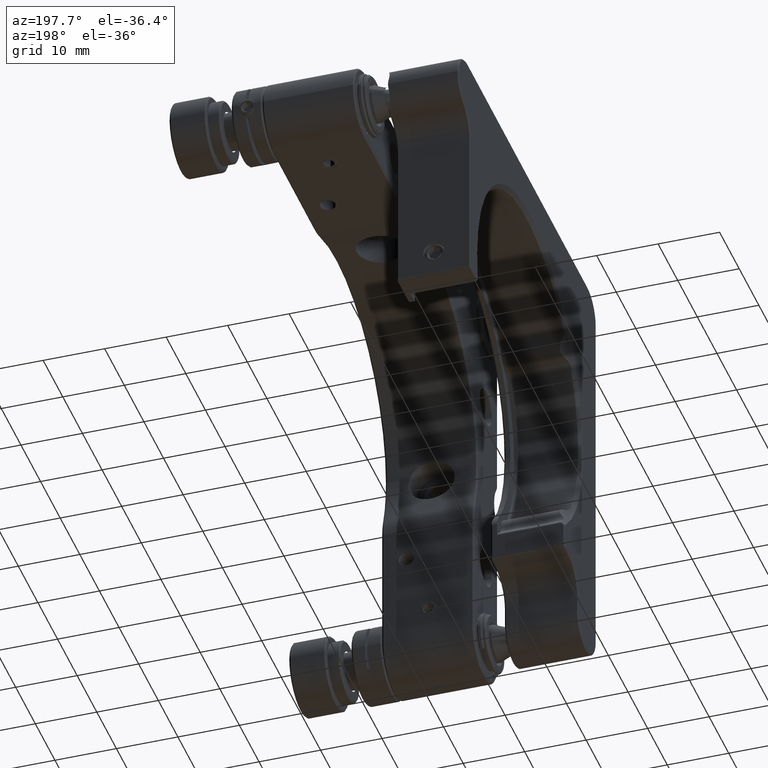
[diagram: clean part render]
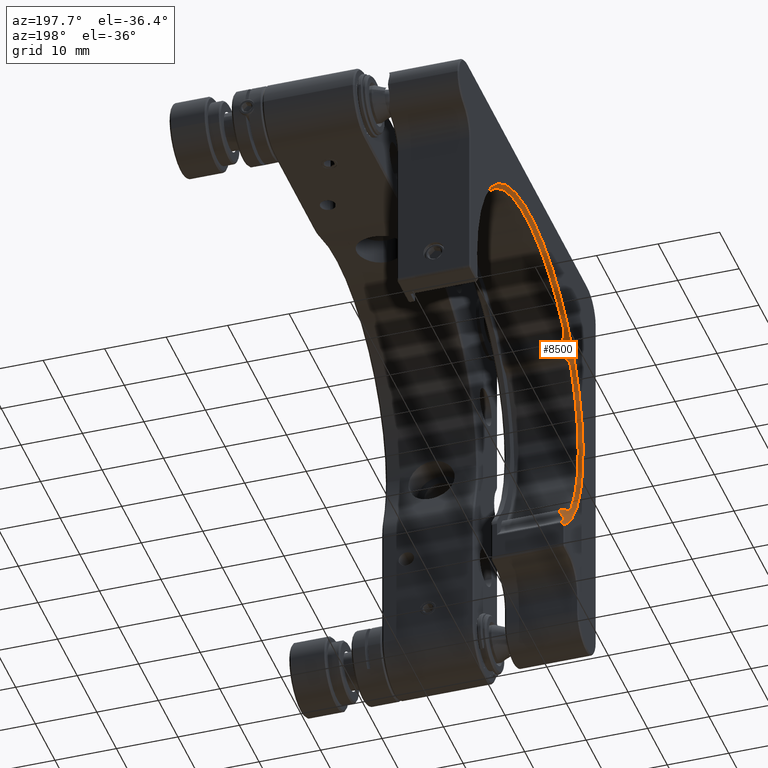
[diagram: same view with one face highlighted and labeled with its STEP entity id]
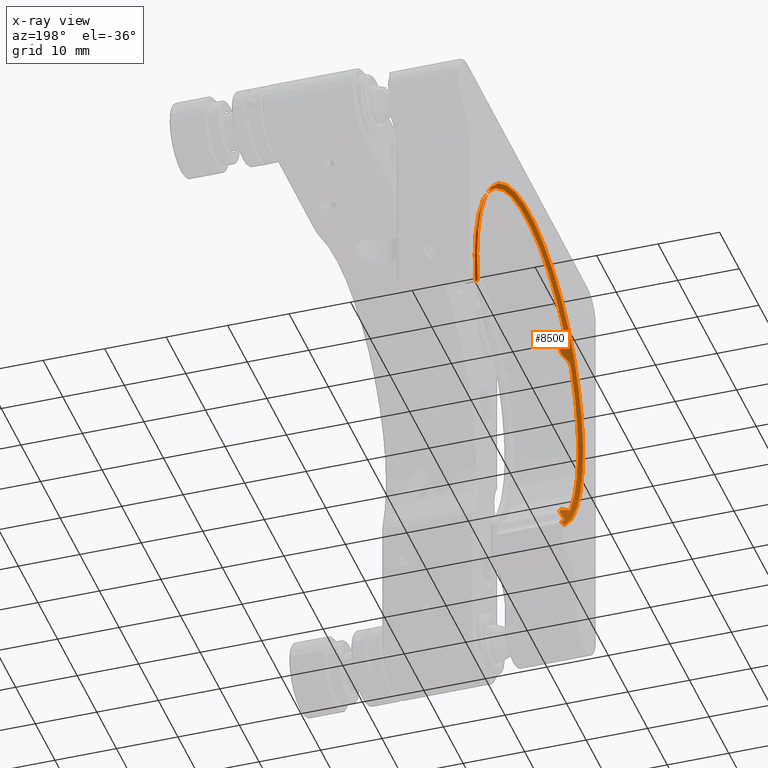
[diagram: x-ray of the same camera — body ghosted, the highlighted face saturated]
A machine part, auxiliary view. The second image highlights one B-rep face of the part: STEP entity #8500.
The next image is the same camera in x-ray: the body ghosted, the highlighted face saturated — about 0% of this face is hidden behind the body in this view.
In plain terms, the highlighted conical surface has half-angle 45 deg.
Its self-contained STEP definition (entity closure, byte-faithful):
#65 = CARTESIAN_POINT ( 'NONE',  ( -15.37561932291421307, -25.20959303295264320, -30.42258700603998278 ) ) ;
#185 = CARTESIAN_POINT ( 'NONE',  ( -14.96334831293876810, -24.24563711739154925, -2.043546343744400140 ) ) ;
#215 = EDGE_CURVE ( 'NONE', #12087, #13635, #13151, .T. ) ;
#241 = CARTESIAN_POINT ( 'NONE',  ( -15.88053628125062389, 23.84285968168334691, -20.89508304166353625 ) ) ;
#325 = B_SPLINE_CURVE_WITH_KNOTS ( 'NONE', 3,
 ( #5987, #65, #9606, #10843, #8449, #7228, #8302, #11936, #1224, #12079 ),
 .UNSPECIFIED., .F., .F.,
 ( 4, 2, 2, 2, 4 ),
 ( 2.301093128800907171E-07, 0.0003898146438576658508, 0.0007793991784024516213, 0.001168983712947237446, 0.001558568247492023162 ),
 .UNSPECIFIED. ) ;
#328 = EDGE_CURVE ( 'NONE', #10068, #9724, #8366, .T. ) ;
#334 = CARTESIAN_POINT ( 'NONE',  ( -15.77561932291396474, 23.72446513700277748, -20.96865503114172213 ) ) ;
#353 = CARTESIAN_POINT ( 'NONE',  ( -15.37561932291421130, -25.14101958343674070, -2.664566599627541166 ) ) ;
#462 = ORIENTED_EDGE ( 'NONE', *, *, #1331, .F. ) ;
#582 = ORIENTED_EDGE ( 'NONE', *, *, #1911, .T. ) ;
#646 = CARTESIAN_POINT ( 'NONE',  ( -15.94398868061005636, 23.91724091355822779, -20.83163064230410910 ) ) ;
#688 = EDGE_CURVE ( 'NONE', #2597, #10495, #13178, .T. ) ;
#920 = B_SPLINE_CURVE_WITH_KNOTS ( 'NONE', 3,
 ( #9454, #185, #12062, #4881, #8435, #1504, #353, #9591 ),
 .UNSPECIFIED., .F., .F.,
 ( 4, 2, 2, 4 ),
 ( 2.440984137988478724E-07, 0.0003904801121956297011, 0.0007807161259774605434, 0.001561188153541122120 ),
 .UNSPECIFIED. ) ;
#938 = CARTESIAN_POINT ( 'NONE',  ( -15.37561932291420774, -21.79889097676029763, 1.644017122345027504 ) ) ;
#993 = B_SPLINE_CURVE_WITH_KNOTS ( 'NONE', 3,
 ( #9023, #10246, #11560, #6933 ),
 .UNSPECIFIED., .F., .F.,
 ( 4, 4 ),
 ( 2.970087734999516481E-07, 0.0002973679810294345958 ),
 .UNSPECIFIED. ) ;
#1002 = CARTESIAN_POINT ( 'NONE',  ( -15.43943353106767447, 23.42972361066624387, -20.68434895745924607 ) ) ;
#1173 = CARTESIAN_POINT ( 'NONE',  ( -14.89309519452554298, -22.35255679983245258, -33.51636094919506093 ) ) ;
#1224 = CARTESIAN_POINT ( 'NONE',  ( -14.96340036283348418, -24.24571608022679214, -31.15643017561736627 ) ) ;
#1258 = CARTESIAN_POINT ( 'NONE',  ( -15.97561932291419851, -2.717071376953200001, -16.59999999999998366 ) ) ;
#1331 = EDGE_CURVE ( 'NONE', #13258, #9116, #2862, .T. ) ;
#1340 = ORIENTED_EDGE ( 'NONE', *, *, #13105, .T. ) ;
#1351 = ORIENTED_EDGE ( 'NONE', *, *, #12931, .T. ) ;
#1504 = CARTESIAN_POINT ( 'NONE',  ( -15.32596851276483463, -24.96075965517142947, -2.471567005293161312 ) ) ;
#1540 = CARTESIAN_POINT ( 'NONE',  ( -14.89309519452553943, -24.13905889188261966, -2.011853905798576037 ) ) ;
#1580 = B_SPLINE_CURVE_WITH_KNOTS ( 'NONE', 3,
 ( #334, #2707, #241, #9651 ),
 .UNSPECIFIED., .F., .F.,
 ( 4, 4 ),
 ( 3.264476680561290876E-07, 0.0002617310106087818839 ),
 .UNSPECIFIED. ) ;
#1620 = CARTESIAN_POINT ( 'NONE',  ( -15.19693173262847274, -22.25764369648098295, -34.08532539313456766 ) ) ;
#1740 = ORIENTED_EDGE ( 'NONE', *, *, #15126, .F. ) ;
#1748 = CARTESIAN_POINT ( 'NONE',  ( -15.77561932291418678, -20.31707137695319787, -36.81088815465561481 ) ) ;
#1911 = EDGE_CURVE ( 'NONE', #13258, #7293, #9852, .T. ) ;
#1931 = CARTESIAN_POINT ( 'NONE',  ( -14.89309519452554120, -22.35255679983246679, 0.3163609491950783448 ) ) ;
#2088 = CARTESIAN_POINT ( 'NONE',  ( -15.37561932291420597, -21.89015766710434363, 1.548559279429309044 ) ) ;
#2116 = CARTESIAN_POINT ( 'NONE',  ( -14.38916313151577064, -23.05023161092638162, -1.354386013233912944 ) ) ;
#2160 = CARTESIAN_POINT ( 'NONE',  ( -15.28333306806048597, -22.16609079068035371, 1.115663922040839307 ) ) ;
#2203 = CARTESIAN_POINT ( 'NONE',  ( -15.37561932291420419, -2.717071376953200001, -16.59999999999998366 ) ) ;
#2227 = DIRECTION ( 'NONE',  ( -1.000000000000000000, -0.000000000000000000, 0.000000000000000000 ) ) ;
#2334 = CARTESIAN_POINT ( 'NONE',  ( -14.62337913126194344, -23.68565238846529297, -31.36948880794528804 ) ) ;
#2365 = DIRECTION ( 'NONE',  ( 0.000000000000000000, 3.942553354492743531E-16, -1.000000000000000000 ) ) ;
#2403 = CARTESIAN_POINT ( 'NONE',  ( -14.43904090437875531, -22.57833179458267381, -32.53531032883943652 ) ) ;
#2427 = CARTESIAN_POINT ( 'NONE',  ( -15.37561932291420419, 23.40399622387030121, -20.42750929368026291 ) ) ;
#2597 = VERTEX_POINT ( 'NONE', #10954 ) ;
#2668 = VERTEX_POINT ( 'NONE', #14398 ) ;
#2707 = CARTESIAN_POINT ( 'NONE',  ( -15.82900045887568297, 23.78430359118121729, -20.93395184990102464 ) ) ;
#2729 = CIRCLE ( 'NONE', #6674, 27.00000000000000355 ) ;
#2849 = CARTESIAN_POINT ( 'NONE',  ( -15.32596865987679102, -22.12117961679923539, -34.42904591835834793 ) ) ;
#2862 = B_SPLINE_CURVE_WITH_KNOTS ( 'NONE', 3,
 ( #9179, #4549, #13804, #6849, #9245, #11561 ),
 .UNSPECIFIED., .F., .F.,
 ( 4, 2, 4 ),
 ( 2.471784010887743372E-07, 0.0002272691520645974544, 0.0004542911257281060993 ),
 .UNSPECIFIED. ) ;
#2895 = CARTESIAN_POINT ( 'NONE',  ( -15.37561932291420419, -2.717071376953200001, -16.59999999999998366 ) ) ;
#3131 = EDGE_CURVE ( 'NONE', #4060, #8993, #5591, .T. ) ;
#3220 = EDGE_CURVE ( 'NONE', #12564, #7293, #993, .T. ) ;
#3239 = ORIENTED_EDGE ( 'NONE', *, *, #12994, .T. ) ;
#3882 = CARTESIAN_POINT ( 'NONE',  ( -14.89309519452554120, -22.35255679983246679, 0.3163609491950783448 ) ) ;
#3890 = DIRECTION ( 'NONE',  ( 0.000000000000000000, 3.942553354492743531E-16, -1.000000000000000000 ) ) ;
#4057 = DIRECTION ( 'NONE',  ( 1.000000000000000000, 0.000000000000000000, -0.000000000000000000 ) ) ;
#4060 = VERTEX_POINT ( 'NONE', #1540 ) ;
#4135 = CARTESIAN_POINT ( 'NONE',  ( -15.61955267315601681, -20.31707137695319787, -36.60359762037940357 ) ) ;
#4271 = ORIENTED_EDGE ( 'NONE', *, *, #9826, .F. ) ;
#4327 = CARTESIAN_POINT ( 'NONE',  ( -15.02829376790901605, -22.33725533847372091, 0.5406111447210664167 ) ) ;
#4399 = CARTESIAN_POINT ( 'NONE',  ( -15.36366264907504053, -21.96981400348964186, 1.446513498738207559 ) ) ;
#4409 = CIRCLE ( 'NONE', #9820, 26.39999999999999858 ) ;
#4430 = CARTESIAN_POINT ( 'NONE',  ( -14.81812998388043390, -24.02533213774107779, -1.978035758787771714 ) ) ;
#4463 = ORIENTED_EDGE ( 'NONE', *, *, #13960, .T. ) ;
#4549 = CARTESIAN_POINT ( 'NONE',  ( -15.49589607707331318, -20.31707137695319787, -36.43851619325718616 ) ) ;
#4586 = EDGE_LOOP ( 'NONE', ( #7450, #9894, #6649, #3239, #4463, #5609, #12895, #1340, #1351, #1740, #8755, #9722, #462, #582, #11606, #4271 ) ) ;
#4615 = FACE_OUTER_BOUND ( 'NONE', #4586, .T. ) ;
#4789 = CARTESIAN_POINT ( 'NONE',  ( -14.89309519452554298, -24.13905889188260900, -31.18814609420141792 ) ) ;
#4806 = CARTESIAN_POINT ( 'NONE',  ( -15.37561932291420774, -21.79889097676029763, 1.644017122345027504 ) ) ;
#4881 = CARTESIAN_POINT ( 'NONE',  ( -15.14449404405029753, -24.55980192791718153, -2.187669481399748150 ) ) ;
#4940 = CONICAL_SURFACE ( 'NONE', #8635, 27.00000000000000355, 0.7853981633974500554 ) ;
#5327 = CARTESIAN_POINT ( 'NONE',  ( -15.95980065886051769, 23.93575694919694641, -20.81581866405364778 ) ) ;
#5591 = B_SPLINE_CURVE_WITH_KNOTS ( 'NONE', 3,
 ( #12749, #4430, #5811, #9280, #15131, #7120, #10587, #2116, #11521, #14067, #8209, #11687, #8127, #9136, #12911, #12828 ),
 .UNSPECIFIED., .F., .F.,
 ( 4, 2, 2, 2, 2, 2, 2, 4 ),
 ( 2.443272006722786936E-07, 0.0004170436206648446857, 0.0008338429141290171686, 0.001250642207593189543, 0.001667441501057362026, 0.002501040087985701137, 0.002917839381449869717, 0.003334638674914038297 ),
 .UNSPECIFIED. ) ;
#5609 = ORIENTED_EDGE ( 'NONE', *, *, #3131, .F. ) ;
#5690 = CARTESIAN_POINT ( 'NONE',  ( -15.47349208706275903, 23.45568540693606963, -20.73831716520759372 ) ) ;
#5774 = VERTEX_POINT ( 'NONE', #8784 ) ;
#5791 = CARTESIAN_POINT ( 'NONE',  ( -14.42835523925074703, -23.24338206664178585, -31.65234962218034553 ) ) ;
#5800 = B_SPLINE_CURVE_WITH_KNOTS ( 'NONE', 3,
 ( #938, #2088, #4399, #7729, #2160, #13896, #9105, #4327, #13815, #1931 ),
 .UNSPECIFIED., .F., .F.,
 ( 4, 2, 2, 2, 4 ),
 ( 2.720947791484685914E-07, 0.0003898568286020937337, 0.0007794415624250390163, 0.001169026296247983919, 0.001558611030070928931 ),
 .UNSPECIFIED. ) ;
#5811 = CARTESIAN_POINT ( 'NONE',  ( -14.74893195429165793, -23.91216107078257380, -1.935644279927496436 ) ) ;
#5831 = CARTESIAN_POINT ( 'NONE',  ( -15.92818342547830746, 23.89871341327983956, -20.84743589743585090 ) ) ;
#5870 = CARTESIAN_POINT ( 'NONE',  ( -14.89309519452554298, -24.13905889188260900, -31.18814609420141792 ) ) ;
#5936 = CIRCLE ( 'NONE', #14560, 26.39999999999999858 ) ;
#5942 = DIRECTION ( 'NONE',  ( 1.000000000000000000, -0.000000000000000000, -0.000000000000000000 ) ) ;
#5987 = CARTESIAN_POINT ( 'NONE',  ( -15.37561932291420952, -25.27817701832682218, -30.30972327360326801 ) ) ;
#6304 = CARTESIAN_POINT ( 'NONE',  ( -15.37561932291420774, -21.98141066061329241, -34.65311576233524704 ) ) ;
#6343 = EDGE_CURVE ( 'NONE', #10495, #9116, #4409, .T. ) ;
#6475 = CARTESIAN_POINT ( 'NONE',  ( -14.96334838422841962, -22.34952872700471360, -33.62751032904947124 ) ) ;
#6649 = ORIENTED_EDGE ( 'NONE', *, *, #215, .F. ) ;
#6674 = AXIS2_PLACEMENT_3D ( 'NONE', #1258, #5942, #14418 ) ;
#6840 = CARTESIAN_POINT ( 'NONE',  ( -15.39028535355398297, 23.39871697720263555, -20.56276573095207993 ) ) ;
#6849 = CARTESIAN_POINT ( 'NONE',  ( -15.39431443525782228, -20.38116069408686926, -36.24513495704265864 ) ) ;
#6905 = DIRECTION ( 'NONE',  ( 1.000000000000000000, 0.000000000000000000, -0.000000000000000000 ) ) ;
#6933 = CARTESIAN_POINT ( 'NONE',  ( -15.77561932291418678, -20.31707137695319787, -36.81088815465561481 ) ) ;
#6952 = CARTESIAN_POINT ( 'NONE',  ( -14.47528059043751725, -22.52593027806570092, -32.65792648109507468 ) ) ;
#6956 = CARTESIAN_POINT ( 'NONE',  ( -15.97561932291419851, 23.95426154811824304, -20.79999999999996518 ) ) ;
#7101 = CARTESIAN_POINT ( 'NONE',  ( -14.74864072504012746, -23.91169671349176440, -31.26451823742828395 ) ) ;
#7120 = CARTESIAN_POINT ( 'NONE',  ( -14.47528064229390310, -23.35474735833928150, -1.622208889450333258 ) ) ;
#7188 = CIRCLE ( 'NONE', #8651, 26.39999999999999858 ) ;
#7228 = CARTESIAN_POINT ( 'NONE',  ( -15.19764132989918437, -24.66556885314232872, -30.94821238110416672 ) ) ;
#7293 = VERTEX_POINT ( 'NONE', #7695 ) ;
#7450 = ORIENTED_EDGE ( 'NONE', *, *, #328, .F. ) ;
#7695 = CARTESIAN_POINT ( 'NONE',  ( -15.77561932291418678, -20.31707137695319787, -36.81088815465561481 ) ) ;
#7711 = CARTESIAN_POINT ( 'NONE',  ( -15.68074353920779274, 23.63386843894241807, -20.93497072728403552 ) ) ;
#7715 = CARTESIAN_POINT ( 'NONE',  ( -15.37561932291420419, -21.79889097676027987, -34.84401712234500792 ) ) ;
#7729 = CARTESIAN_POINT ( 'NONE',  ( -15.31777195164426608, -22.10786413409751461, 1.230369566703931605 ) ) ;
#8009 = CARTESIAN_POINT ( 'NONE',  ( -15.37561932291420952, 23.39409272620126856, -20.49509630973915364 ) ) ;
#8061 = CARTESIAN_POINT ( 'NONE',  ( -15.54176319062673350, -20.31707137695319787, -36.49974874213238962 ) ) ;
#8127 = CARTESIAN_POINT ( 'NONE',  ( -14.62337906851865554, -22.41037020153542159, -0.1685311832697529155 ) ) ;
#8209 = CARTESIAN_POINT ( 'NONE',  ( -14.42835519124426469, -22.56912482879736714, -0.6689413095605695192 ) ) ;
#8260 = CARTESIAN_POINT ( 'NONE',  ( -14.74893189886060085, -22.36744418072209939, -33.27746988095972114 ) ) ;
#8302 = CARTESIAN_POINT ( 'NONE',  ( -15.14566436660986426, -24.56198624551726439, -31.01115107752189104 ) ) ;
#8366 = B_SPLINE_CURVE_WITH_KNOTS ( 'NONE', 3,
 ( #11988, #646, #5327, #11268 ),
 .UNSPECIFIED., .F., .F.,
 ( 4, 4 ),
 ( 3.133972143786801536E-07, 8.741060735982967103E-05 ),
 .UNSPECIFIED. ) ;
#8435 = CARTESIAN_POINT ( 'NONE',  ( -15.19693162513054752, -24.66407080651781314, -2.250791622587559271 ) ) ;
#8449 = CARTESIAN_POINT ( 'NONE',  ( -15.28333300403354578, -24.86286515376171380, -30.80115907183529700 ) ) ;
#8500 = ADVANCED_FACE ( 'NONE', ( #4615 ), #4940, .F. ) ;
#8541 = CARTESIAN_POINT ( 'NONE',  ( -14.89309519452554298, -22.35255679983245258, -33.51636094919506093 ) ) ;
#8635 = AXIS2_PLACEMENT_3D ( 'NONE', #15239, #2227, #9477 ) ;
#8651 = AXIS2_PLACEMENT_3D ( 'NONE', #2895, #14459, #3890 ) ;
#8755 = ORIENTED_EDGE ( 'NONE', *, *, #688, .T. ) ;
#8784 = CARTESIAN_POINT ( 'NONE',  ( -15.37561932291420952, -25.27817701832682218, -30.30972327360326801 ) ) ;
#8981 = CARTESIAN_POINT ( 'NONE',  ( -15.77561932291396474, 23.72446513700277748, -20.96865503114172213 ) ) ;
#8993 = VERTEX_POINT ( 'NONE', #3882 ) ;
#9023 = CARTESIAN_POINT ( 'NONE',  ( -15.97561932291419851, -20.51707137695320426, -36.90172406471920397 ) ) ;
#9105 = CARTESIAN_POINT ( 'NONE',  ( -15.14566415086705042, -22.29105449696925234, 0.7706866437670151226 ) ) ;
#9116 = VERTEX_POINT ( 'NONE', #13620 ) ;
#9136 = CARTESIAN_POINT ( 'NONE',  ( -14.74864066636700421, -22.36748097570729854, 0.07697927900878037688 ) ) ;
#9179 = CARTESIAN_POINT ( 'NONE',  ( -15.54176319062673350, -20.31707137695319787, -36.49974874213238962 ) ) ;
#9245 = CARTESIAN_POINT ( 'NONE',  ( -15.37561932291420952, -20.42370334591960912, -36.18165233195561825 ) ) ;
#9280 = CARTESIAN_POINT ( 'NONE',  ( -14.62405979788464805, -23.68694141858558666, -1.831162501580395396 ) ) ;
#9326 = CARTESIAN_POINT ( 'NONE',  ( -14.37576519940231812, -22.78230417417729115, -32.17476030826161093 ) ) ;
#9454 = CARTESIAN_POINT ( 'NONE',  ( -14.89309519452553943, -24.13905889188261966, -2.011853905798576037 ) ) ;
#9477 = DIRECTION ( 'NONE',  ( 0.000000000000000000, 4.015563601798163822E-16, -1.000000000000000000 ) ) ;
#9494 = CARTESIAN_POINT ( 'NONE',  ( -14.56785692082838146, -22.44152348009094311, -32.90716969854445750 ) ) ;
#9591 = CARTESIAN_POINT ( 'NONE',  ( -15.37561932291420419, -25.27817701832683284, -2.890276726396710849 ) ) ;
#9606 = CARTESIAN_POINT ( 'NONE',  ( -15.36366253480709787, -25.13164080322799521, -30.52594052170482541 ) ) ;
#9651 = CARTESIAN_POINT ( 'NONE',  ( -15.92818342547830746, 23.89871341327983956, -20.84743589743585090 ) ) ;
#9722 = ORIENTED_EDGE ( 'NONE', *, *, #6343, .T. ) ;
#9724 = VERTEX_POINT ( 'NONE', #6956 ) ;
#9820 = AXIS2_PLACEMENT_3D ( 'NONE', #2203, #6905, #2365 ) ;
#9826 = EDGE_CURVE ( 'NONE', #9724, #12564, #2729, .T. ) ;
#9852 = B_SPLINE_CURVE_WITH_KNOTS ( 'NONE', 3,
 ( #10998, #4135, #9999, #1748 ),
 .UNSPECIFIED., .F., .F.,
 ( 4, 4 ),
 ( 0.01640639502512104136, 0.01679303552796196364 ),
 .UNSPECIFIED. ) ;
#9894 = ORIENTED_EDGE ( 'NONE', *, *, #13863, .F. ) ;
#9999 = CARTESIAN_POINT ( 'NONE',  ( -15.69750655463910505, -20.31707137695319787, -36.70730922364807469 ) ) ;
#10022 = CARTESIAN_POINT ( 'NONE',  ( -15.14449416307251184, -22.29162824195795523, -33.96827218449353580 ) ) ;
#10067 = CARTESIAN_POINT ( 'NONE',  ( -15.37561932291420419, -2.717071376953200001, -16.59999999999998366 ) ) ;
#10068 = VERTEX_POINT ( 'NONE', #5831 ) ;
#10089 = CARTESIAN_POINT ( 'NONE',  ( -15.37561932291420419, 23.40399622387030121, -20.42750929368026291 ) ) ;
#10246 = CARTESIAN_POINT ( 'NONE',  ( -15.90893872313403534, -20.45039077717304465, -36.87150685183512877 ) ) ;
#10398 = CARTESIAN_POINT ( 'NONE',  ( -15.58825070132737878, 23.55005527790780917, -20.87511737788048194 ) ) ;
#10495 = VERTEX_POINT ( 'NONE', #12831 ) ;
#10549 = VERTEX_POINT ( 'NONE', #4806 ) ;
#10587 = CARTESIAN_POINT ( 'NONE',  ( -14.43904094983555453, -23.24987177676475270, -1.539857546687694478 ) ) ;
#10843 = CARTESIAN_POINT ( 'NONE',  ( -15.31777192520351427, -24.95859226713393753, -30.71522828864547705 ) ) ;
#10923 = DIRECTION ( 'NONE',  ( 0.000000000000000000, 3.942553354492743531E-16, -1.000000000000000000 ) ) ;
#10954 = CARTESIAN_POINT ( 'NONE',  ( -14.89309519452554298, -22.35255679983245258, -33.51636094919506093 ) ) ;
#10998 = CARTESIAN_POINT ( 'NONE',  ( -15.54176319062673350, -20.31707137695319787, -36.49974874213238962 ) ) ;
#11268 = CARTESIAN_POINT ( 'NONE',  ( -15.97561932291419851, 23.95426154811824304, -20.79999999999996518 ) ) ;
#11521 = CARTESIAN_POINT ( 'NONE',  ( -14.37576520968918281, -22.95439908096490100, -1.249518125416835934 ) ) ;
#11560 = CARTESIAN_POINT ( 'NONE',  ( -15.84227197124930164, -20.38372402528831628, -36.84122845241940780 ) ) ;
#11561 = CARTESIAN_POINT ( 'NONE',  ( -15.37561932291420241, -20.48064015018739781, -36.12986493651654740 ) ) ;
#11606 = ORIENTED_EDGE ( 'NONE', *, *, #3220, .F. ) ;
#11687 = CARTESIAN_POINT ( 'NONE',  ( -14.56708827300837683, -22.44202162027854186, -0.2946375557147639657 ) ) ;
#11736 = CARTESIAN_POINT ( 'NONE',  ( -14.37533126786605742, -23.03580698174730301, -31.84374007873048384 ) ) ;
#11809 = CARTESIAN_POINT ( 'NONE',  ( -14.81801331716006764, -24.02515514727696555, -31.22201687165594564 ) ) ;
#11936 = CARTESIAN_POINT ( 'NONE',  ( -15.02829376397957795, -24.35170761815463436, -31.11532581955867371 ) ) ;
#11988 = CARTESIAN_POINT ( 'NONE',  ( -15.92818342547830746, 23.89871341327983956, -20.84743589743585090 ) ) ;
#12062 = CARTESIAN_POINT ( 'NONE',  ( -15.02795434421567400, -24.35118825695602141, -2.084515453716873523 ) ) ;
#12079 = CARTESIAN_POINT ( 'NONE',  ( -14.89309519452554298, -24.13905889188260900, -31.18814609420141792 ) ) ;
#12087 = VERTEX_POINT ( 'NONE', #2427 ) ;
#12564 = VERTEX_POINT ( 'NONE', #13318 ) ;
#12749 = CARTESIAN_POINT ( 'NONE',  ( -14.89309519452553943, -24.13905889188261966, -2.011853905798576037 ) ) ;
#12801 = CARTESIAN_POINT ( 'NONE',  ( -14.81812994288984520, -22.35578797328469136, -33.39775649486099240 ) ) ;
#12828 = CARTESIAN_POINT ( 'NONE',  ( -14.89309519452554120, -22.35255679983246679, 0.3163609491950783448 ) ) ;
#12831 = CARTESIAN_POINT ( 'NONE',  ( -15.37561932291420419, -21.79889097676027987, -34.84401712234500792 ) ) ;
#12895 = ORIENTED_EDGE ( 'NONE', *, *, #14392, .T. ) ;
#12911 = CARTESIAN_POINT ( 'NONE',  ( -14.81801327716515360, -22.35579300184372542, 0.1975719150148150804 ) ) ;
#12931 = EDGE_CURVE ( 'NONE', #5774, #13748, #325, .T. ) ;
#12956 = CARTESIAN_POINT ( 'NONE',  ( -14.62405975269531666, -22.41007470295152615, -33.03288253174807920 ) ) ;
#12994 = EDGE_CURVE ( 'NONE', #12087, #10549, #5936, .T. ) ;
#13027 = CARTESIAN_POINT ( 'NONE',  ( -14.56708832665234254, -23.57203496813941257, -31.43270045852711192 ) ) ;
#13105 = EDGE_CURVE ( 'NONE', #2668, #5774, #7188, .T. ) ;
#13151 = B_SPLINE_CURVE_WITH_KNOTS ( 'NONE', 3,
 ( #10089, #8009, #6840, #1002, #5690, #10398, #7711, #15089 ),
 .UNSPECIFIED., .F., .F.,
 ( 4, 2, 2, 4 ),
 ( 1.986326264845026829E-07, 0.0002015784205392980738, 0.0004029582084521116103, 0.0008057177842777346177 ),
 .UNSPECIFIED. ) ;
#13178 = B_SPLINE_CURVE_WITH_KNOTS ( 'NONE', 3,
 ( #8541, #6475, #13244, #10022, #1620, #2849, #6304, #7715 ),
 .UNSPECIFIED., .F., .F.,
 ( 4, 2, 2, 4 ),
 ( 2.340628777478304867E-07, 0.0003904702253561648478, 0.0007807063878345818757, 0.001561178712791418208 ),
 .UNSPECIFIED. ) ;
#13244 = CARTESIAN_POINT ( 'NONE',  ( -15.02795444999028796, -22.33727422933613838, -33.74006856289999234 ) ) ;
#13258 = VERTEX_POINT ( 'NONE', #8061 ) ;
#13318 = CARTESIAN_POINT ( 'NONE',  ( -15.97561932291419851, -20.51707137695320426, -36.90172406471920397 ) ) ;
#13620 = CARTESIAN_POINT ( 'NONE',  ( -15.37561932291420241, -20.48064015018739781, -36.12986493651654740 ) ) ;
#13635 = VERTEX_POINT ( 'NONE', #8981 ) ;
#13748 = VERTEX_POINT ( 'NONE', #5870 ) ;
#13804 = CARTESIAN_POINT ( 'NONE',  ( -15.45493977211972592, -20.32818787025815155, -36.37389477963517948 ) ) ;
#13815 = CARTESIAN_POINT ( 'NONE',  ( -14.96340041400680931, -22.34952648440252077, 0.4275926467012223786 ) ) ;
#13863 = EDGE_CURVE ( 'NONE', #13635, #10068, #1580, .T. ) ;
#13896 = CARTESIAN_POINT ( 'NONE',  ( -15.19764143307943449, -22.25706935298999412, 0.8870301795401740463 ) ) ;
#13939 = B_SPLINE_CURVE_WITH_KNOTS ( 'NONE', 3,
 ( #1173, #12801, #8260, #12956, #9494, #6952, #2403, #14264, #9326, #11736, #5791, #13027, #2334, #7101, #11809, #4789 ),
 .UNSPECIFIED., .F., .F.,
 ( 4, 2, 2, 2, 2, 2, 2, 4 ),
 ( 2.342816241304398634E-07, 0.0004170335913188531795, 0.0008338329010135759863, 0.001250632210708298902, 0.001667431520403021492, 0.002501030139792477080, 0.002917829449487199019, 0.003334628759181920525 ),
 .UNSPECIFIED. ) ;
#13960 = EDGE_CURVE ( 'NONE', #10549, #8993, #5800, .T. ) ;
#14067 = CARTESIAN_POINT ( 'NONE',  ( -14.37533124781094074, -22.70026947556154084, -0.9189789596604712729 ) ) ;
#14264 = CARTESIAN_POINT ( 'NONE',  ( -14.38916311318758900, -22.70581286148091849, -32.29446921252135638 ) ) ;
#14392 = EDGE_CURVE ( 'NONE', #4060, #2668, #920, .T. ) ;
#14398 = CARTESIAN_POINT ( 'NONE',  ( -15.37561932291420419, -25.27817701832683284, -2.890276726396710849 ) ) ;
#14418 = DIRECTION ( 'NONE',  ( 0.000000000000000000, 4.015563601798163822E-16, -1.000000000000000000 ) ) ;
#14459 = DIRECTION ( 'NONE',  ( 1.000000000000000000, 0.000000000000000000, -0.000000000000000000 ) ) ;
#14560 = AXIS2_PLACEMENT_3D ( 'NONE', #10067, #4057, #10923 ) ;
#15089 = CARTESIAN_POINT ( 'NONE',  ( -15.77561932291396474, 23.72446513700277748, -20.96865503114172213 ) ) ;
#15126 = EDGE_CURVE ( 'NONE', #2597, #13748, #13939, .T. ) ;
#15131 = CARTESIAN_POINT ( 'NONE',  ( -14.56785693124854220, -23.57365161692961664, -1.768248398933489174 ) ) ;
#15239 = CARTESIAN_POINT ( 'NONE',  ( -15.97561932291419851, -2.717071376953200001, -16.59999999999998366 ) ) ;